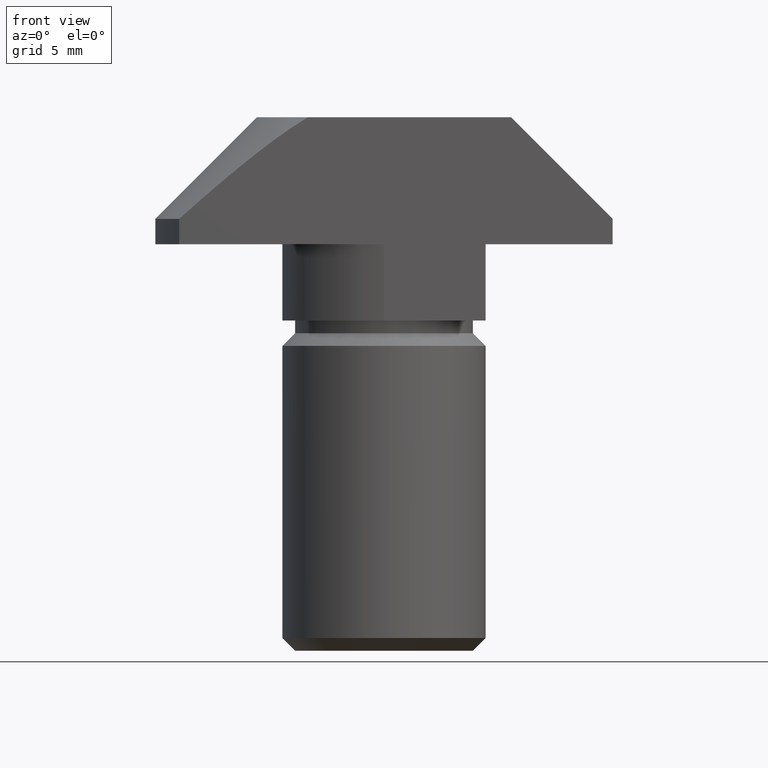
[diagram: clean part render]
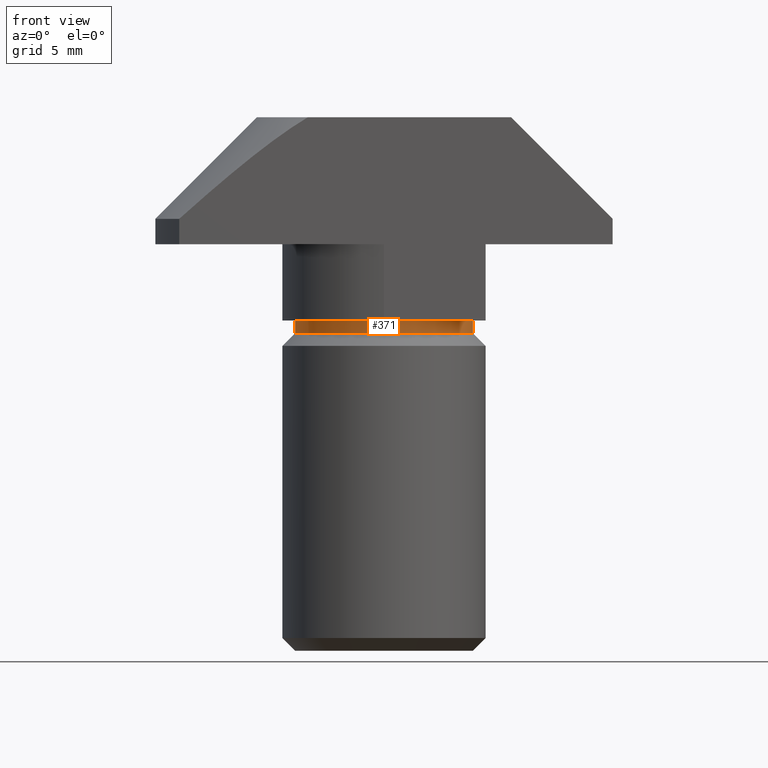
[diagram: same view with one face highlighted and labeled with its STEP entity id]
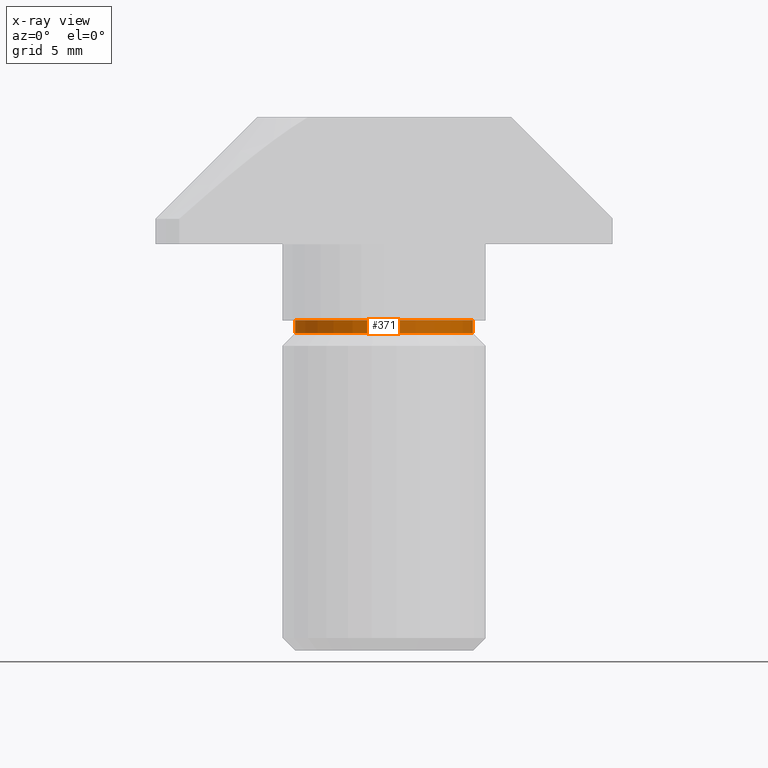
[diagram: x-ray of the same camera — body ghosted, the highlighted face saturated]
A machine part, front view. The second image highlights one B-rep face of the part: STEP entity #371.
The next image is the same camera in x-ray: the body ghosted, the highlighted face saturated — about 0% of this face is hidden behind the body in this view.
In plain terms, the highlighted cylindrical surface (bore or boss wall) has radius 3.5 mm, axis along (0, 0, -1).
Its self-contained STEP definition (entity closure, byte-faithful):
#99=CYLINDRICAL_SURFACE('',#400,3.5);
#107=FACE_BOUND('',#140,.T.);
#113=FACE_OUTER_BOUND('',#139,.T.);
#139=EDGE_LOOP('',(#268));
#140=EDGE_LOOP('',(#269));
#161=CIRCLE('',#394,3.5);
#164=CIRCLE('',#401,3.5);
#176=VERTEX_POINT('',#546);
#179=VERTEX_POINT('',#556);
#211=EDGE_CURVE('',#176,#176,#161,.T.);
#214=EDGE_CURVE('',#179,#179,#164,.T.);
#268=ORIENTED_EDGE('',*,*,#211,.F.);
#269=ORIENTED_EDGE('',*,*,#214,.F.);
#371=ADVANCED_FACE('',(#113,#107),#99,.T.);
#394=AXIS2_PLACEMENT_3D('',#547,#436,#437);
#400=AXIS2_PLACEMENT_3D('',#555,#448,#449);
#401=AXIS2_PLACEMENT_3D('',#557,#450,#451);
#436=DIRECTION('center_axis',(0.,0.,-1.));
#437=DIRECTION('ref_axis',(1.,0.,0.));
#448=DIRECTION('center_axis',(0.,0.,-1.));
#449=DIRECTION('ref_axis',(1.,0.,0.));
#450=DIRECTION('center_axis',(0.,0.,1.));
#451=DIRECTION('ref_axis',(1.,0.,0.));
#546=CARTESIAN_POINT('',(-3.5,4.28626379701574E-16,-8.5));
#547=CARTESIAN_POINT('Origin',(0.,0.,-8.5));
#555=CARTESIAN_POINT('Origin',(0.,0.,-8.));
#556=CARTESIAN_POINT('',(-3.5,4.28626379701574E-16,-8.));
#557=CARTESIAN_POINT('Origin',(0.,0.,-8.));